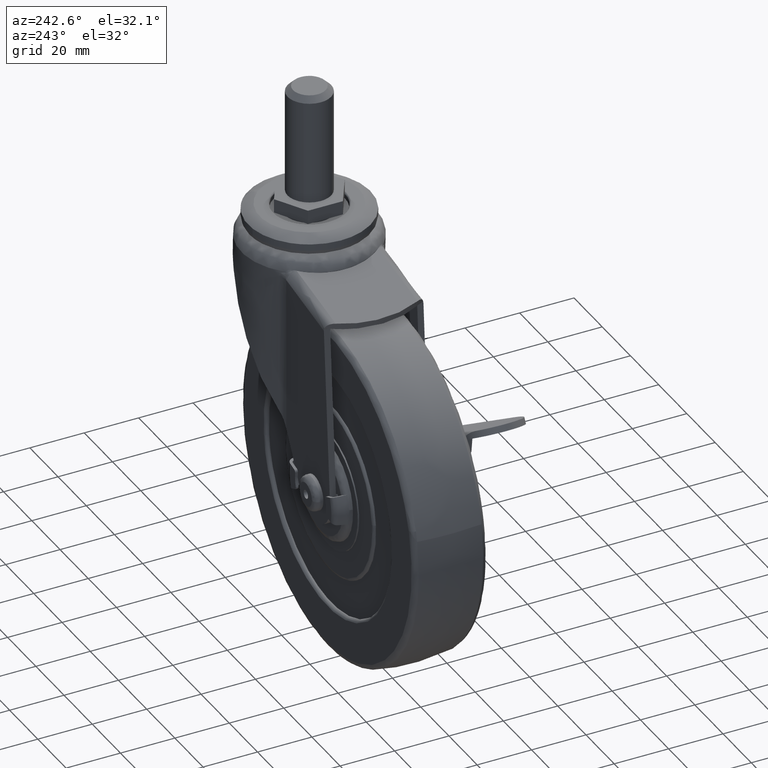
[diagram: clean part render]
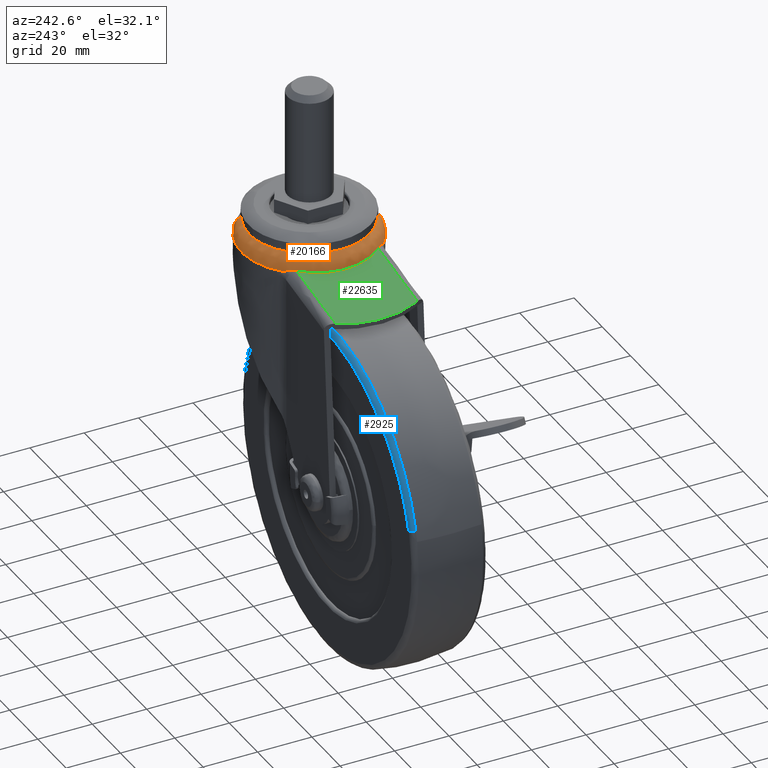
[diagram: same view with three faces highlighted in distinct colors, each labeled with its STEP entity id]
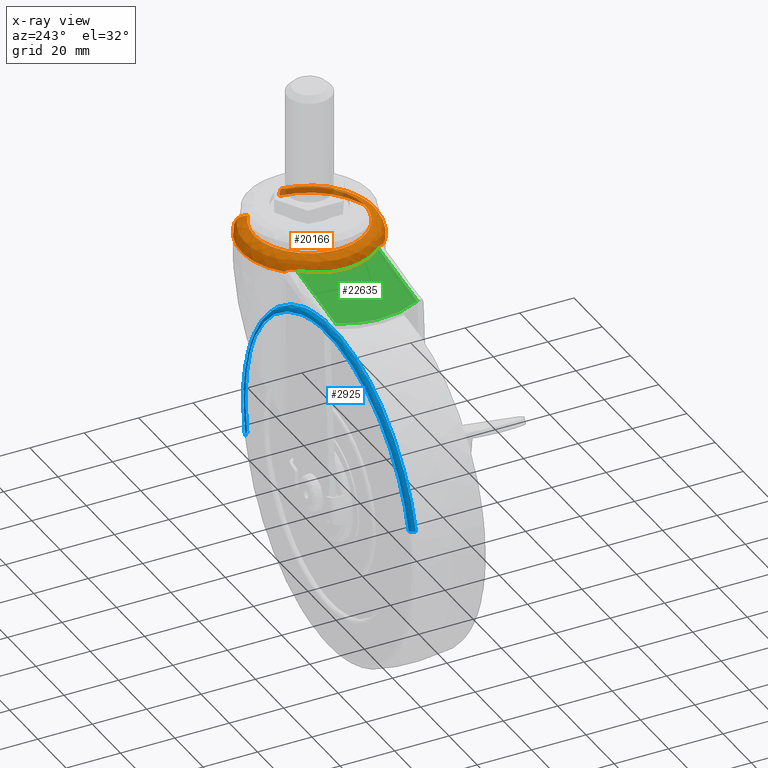
[diagram: x-ray of the same camera — body ghosted, the three highlighted faces saturated]
A machine part, auxiliary view with three faces highlighted in distinct colors.
The next image is the same camera in x-ray (body ghosted, the three faces saturated) — at least one of them is partly hidden behind the body in this view.
Their STEP definitions:

[orange] entity #20166 — the highlighted face is a freeform B-spline surface patch.
#19338=CARTESIAN_POINT('',(39.0,20.265256309137541,77.592953951089541));
#19339=VERTEX_POINT('',#19338);
#19354=CARTESIAN_POINT('',(30.647028415773040,-18.463707076183891,77.592953951375875));
#19355=VERTEX_POINT('',#19354);
#19356=CARTESIAN_POINT('',(39.0,20.265256309137541,77.592953951089541));
#19357=CARTESIAN_POINT('',(37.207735362519543,20.265939163630499,77.592953951109621));
#19358=CARTESIAN_POINT('',(34.555717465452908,19.910899209113051,77.592953951141311));
#19359=CARTESIAN_POINT('',(30.680754423732932,18.588154629503951,77.592953951191461));
#19360=CARTESIAN_POINT('',(27.895194778239350,17.070888497883161,77.592953951230541));
#19361=CARTESIAN_POINT('',(25.302418128438308,15.022444437646870,77.592953951269479));
#19362=CARTESIAN_POINT('',(23.063749737711611,12.687366312922540,77.592953951305589));
#19363=CARTESIAN_POINT('',(21.222096826273319,9.931755367341840,77.592953951342864));
#19364=CARTESIAN_POINT('',(19.671316385626952,6.453288555340813,77.592953951376444));
#19365=CARTESIAN_POINT('',(18.800559652045120,2.879127913058889,77.592953951400943));
#19366=CARTESIAN_POINT('',(18.639399350339900,-1.436671111445533,77.592953951427674));
#19367=CARTESIAN_POINT('',(19.321603073273771,-5.420535010354760,77.592953951439299));
#19368=CARTESIAN_POINT('',(20.698266315513649,-8.901138540536463,77.592953951440208));
#19369=CARTESIAN_POINT('',(22.385647718577221,-11.743489604109969,77.592953951435717));
#19370=CARTESIAN_POINT('',(24.536984550715701,-14.352355683696221,77.592953951424022));
#19371=CARTESIAN_POINT('',(27.344318805089621,-16.720440288034830,77.592953951404567));
#19372=CARTESIAN_POINT('',(29.536659331821600,-17.961505337927711,77.592953951385795));
#19373=CARTESIAN_POINT('',(30.647028415773040,-18.463707076183891,77.592953951375875));
#19374=B_SPLINE_CURVE_WITH_KNOTS('',3,(#19356,#19357,#19358,#19359,#19360,#19361,#19362,#19363,#19364,#19365,#19366,#19367,#19368,#19369,#19370,#19371,#19372,#19373),.UNSPECIFIED.,.F.,.U.,(4,1,1,1,1,1,1,1,1,1,1,1,1,1,1,4),(0.000000175568722,5.376530816068886,7.957279247970575,12.258503648912370,14.839271635573320,17.850128881663672,21.936310371105488,24.732176814358191,29.248321720521890,32.904411038884220,37.635769665605423,41.291847597522597,44.087654074183163,47.528690246728097,51.399823593678867,55.055794238812069),.UNSPECIFIED.);
#19375=EDGE_CURVE('',#19339,#19355,#19374,.T.);
#19457=CARTESIAN_POINT('',(39.0,-20.265256309324450,77.592953951399991));
#19458=VERTEX_POINT('',#19457);
#19459=CARTESIAN_POINT('',(30.647028415773040,-18.463707076183891,77.592953951375875));
#19460=CARTESIAN_POINT('',(32.117700568471207,-19.129472193331040,77.592953951384814));
#19461=CARTESIAN_POINT('',(34.874574977113546,-19.997688185461008,77.592953951396453));
#19462=CARTESIAN_POINT('',(37.744419646314988,-20.265385768020970,77.592953951400162));
#19463=CARTESIAN_POINT('',(39.0,-20.265256309324450,77.592953951399991));
#19464=B_SPLINE_CURVE_WITH_KNOTS('',3,(#19459,#19460,#19461,#19462,#19463),.UNSPECIFIED.,.F.,.U.,(4,1,4),(9.564785E-009,4.842927149938667,8.609660252268593),.UNSPECIFIED.);
#19465=EDGE_CURVE('',#19355,#19458,#19464,.T.);
#19467=CARTESIAN_POINT('',(59.207680703124410,-1.526517022578861,77.592953950958162));
#19468=VERTEX_POINT('',#19467);
#19469=CARTESIAN_POINT('',(39.0,-20.265256309324450,77.592953951399991));
#19470=CARTESIAN_POINT('',(40.578401177677108,-20.265635707481689,77.592953951400048));
#19471=CARTESIAN_POINT('',(42.866843773846320,-19.996454311772940,77.592953951393426));
#19472=CARTESIAN_POINT('',(46.050976621600888,-19.059280732838751,77.592953951371911));
#19473=CARTESIAN_POINT('',(48.296504984463112,-18.070636254484260,77.592953951347511));
#19474=CARTESIAN_POINT('',(50.596565679466153,-16.681632830279121,77.592953951315721));
#19475=CARTESIAN_POINT('',(53.147458999932823,-14.678093188964141,77.592953951268072));
#19476=CARTESIAN_POINT('',(55.708678883279227,-11.745718034808471,77.592953951199604));
#19477=CARTESIAN_POINT('',(57.692284890025682,-8.130019301707547,77.592953951112960));
#19478=CARTESIAN_POINT('',(58.796336034055400,-4.740304569402237,77.592953951035540));
#19479=CARTESIAN_POINT('',(59.130437211760672,-2.549535108950208,77.592953950981155));
#19480=CARTESIAN_POINT('',(59.207680703124410,-1.526517022578861,77.592953950958162));
#19481=B_SPLINE_CURVE_WITH_KNOTS('',3,(#19469,#19470,#19471,#19472,#19473,#19474,#19475,#19476,#19477,#19478,#19479,#19480),.UNSPECIFIED.,.F.,.U.,(4,1,1,1,1,1,1,1,1,4),(0.000000057144167,4.735098445447740,6.865924263569152,9.943786403702600,12.074593821889660,14.915657352290250,19.650737852365570,23.675628872967049,27.226986073415880,30.304798180058661),.UNSPECIFIED.);
#19482=EDGE_CURVE('',#19458,#19468,#19481,.T.);
#19484=CARTESIAN_POINT('',(50.937016643767933,16.376454046136391,77.592953951142775));
#19485=VERTEX_POINT('',#19484);
#19498=CARTESIAN_POINT('',(50.937016643767933,16.376454046136391,77.592953951142775));
#19499=CARTESIAN_POINT('',(50.184890709139843,16.924701531309509,77.592953951179140));
#19500=CARTESIAN_POINT('',(48.322866064470539,18.094739231645551,77.592953951244283));
#19501=CARTESIAN_POINT('',(45.492128053112573,19.286840523628779,77.592953951267020));
#19502=CARTESIAN_POINT('',(42.257560819282808,20.082137474032340,77.592953951218959));
#19503=CARTESIAN_POINT('',(40.196675569357062,20.265374330866649,77.592953951145404));
#19504=CARTESIAN_POINT('',(39.0,20.265256309137541,77.592953951089541));
#19505=B_SPLINE_CURVE_WITH_KNOTS('',3,(#19498,#19499,#19500,#19501,#19502,#19503,#19504),.UNSPECIFIED.,.F.,.U.,(4,1,1,1,4),(0.000000023410548,2.792233055296482,6.581674360535325,9.174482418074692,12.764498748967180),.UNSPECIFIED.);
#19506=EDGE_CURVE('',#19485,#19339,#19505,.T.);
#19976=CARTESIAN_POINT('',(53.719168710118616,20.193309938605488,72.260650173845860));
#19977=CARTESIAN_POINT('',(47.972897041528846,24.381842794353272,72.260650173845875));
#19978=CARTESIAN_POINT('',(40.882301711849550,24.917476478549883,72.260650173845889));
#19979=CARTESIAN_POINT('',(15.964825233299669,26.799778190399419,72.260650173845889));
#19980=CARTESIAN_POINT('',(14.082523521450126,1.882301711849547,72.260650173845889));
#19981=CARTESIAN_POINT('',(12.200221809600583,-23.035174766700337,72.260650173845889));
#19982=CARTESIAN_POINT('',(37.117698288150450,-24.917476478549883,72.260650173845889));
#19983=CARTESIAN_POINT('',(62.035174766700329,-26.799778190399419,72.260650173845889));
#19984=CARTESIAN_POINT('',(63.917476478549872,-1.882301711849545,72.260650173845889));
#19985=CARTESIAN_POINT('',(53.936264964327144,20.491145504871501,77.678599923360807));
#19986=CARTESIAN_POINT('',(48.105240272011400,24.741455952242866,77.678599923360807));
#19987=CARTESIAN_POINT('',(40.910064193480174,25.284989815366483,77.678599923360792));
#19988=CARTESIAN_POINT('',(15.625074378113686,27.195054008846665,77.678599923360792));
#19989=CARTESIAN_POINT('',(13.715010184633512,1.910064193480179,77.678599923360792));
#19990=CARTESIAN_POINT('',(11.804945991153332,-23.374925621886305,77.678599923360792));
#19991=CARTESIAN_POINT('',(37.089935806519826,-25.284989815366483,77.678599923360792));
#19992=CARTESIAN_POINT('',(62.374925621886305,-27.195054008846665,77.678599923360792));
#19993=CARTESIAN_POINT('',(64.284989815366472,-1.910064193480176,77.678599923360792));
#19994=CARTESIAN_POINT('',(50.737848706926975,16.103220339372406,77.599464073260506));
#19995=CARTESIAN_POINT('',(46.155465774632702,19.443379415812810,77.599464073260535));
#19996=CARTESIAN_POINT('',(40.501047589684269,19.870522230142509,77.599464073260521));
#19997=CARTESIAN_POINT('',(20.630525359541764,21.371569819826764,77.599464073260521));
#19998=CARTESIAN_POINT('',(19.129477769857491,1.501047589684267,77.599464073260521));
#19999=CARTESIAN_POINT('',(17.628430180173233,-18.369474640458236,77.599464073260521));
#20000=CARTESIAN_POINT('',(37.498952410315738,-19.870522230142509,77.599464073260521));
#20001=CARTESIAN_POINT('',(57.369474640458243,-21.371569819826764,77.599464073260521));
#20002=CARTESIAN_POINT('',(58.870522230142512,-1.501047589684265,77.599464073260521));
#20010=(BOUNDED_SURFACE()B_SPLINE_SURFACE(2,2,((#19976,#19985,#19994),(#19977,#19986,#19995),(#19978,#19987,#19996),(#19979,#19988,#19997),(#19980,#19989,#19998),(#19981,#19990,#19999),(#19982,#19991,#20000),(#19983,#19992,#20001),(#19984,#19993,#20002)),.UNSPECIFIED.,.F.,.F.,.U.)B_SPLINE_SURFACE_WITH_KNOTS((3,2,2,2,3),(3,3),(0.0,14.904807357810411,56.307062083032022,97.709316808253632,139.111571533475310),(0.0,8.771733448639784),.UNSPECIFIED.)GEOMETRIC_REPRESENTATION_ITEM()RATIONAL_B_SPLINE_SURFACE(((0.788496265358949,0.535197888740903,0.791782815058649),(0.815407653379609,0.553464199799698,0.818806373064258),(0.911519681435157,0.618700976126748,0.915319007908730),(0.644541747927801,0.437487655745960,0.647228277441206),(0.911519681435157,0.618700976126748,0.915319007908730),(0.644541747927801,0.437487655745960,0.647228277441206),(0.911519681435157,0.618700976126748,0.915319007908730),(0.644541747927801,0.437487655745960,0.647228277441206),(0.911519681435157,0.618700976126748,0.915319007908730)))REPRESENTATION_ITEM('')SURFACE());
#20011=ORIENTED_EDGE('',*,*,#19506,.F.);
#20012=CARTESIAN_POINT('',(53.725963070296622,20.202623880383950,72.599995001327400));
#20013=VERTEX_POINT('',#20012);
#20014=CARTESIAN_POINT('',(53.725963070296622,20.202623880383950,72.599995001327400));
#20015=CARTESIAN_POINT('',(53.726044020887429,20.202734936912410,73.034766933663732));
#20016=CARTESIAN_POINT('',(53.667884139079902,20.122945098276599,73.785649172845680));
#20017=CARTESIAN_POINT('',(53.447980828383187,19.821258624188719,74.790516428405027));
#20018=CARTESIAN_POINT('',(53.132550165690859,19.388517688432120,75.673014550826409));
#20019=CARTESIAN_POINT('',(52.745387567597213,18.857367344458790,76.366151845357578));
#20020=CARTESIAN_POINT('',(52.233299335353053,18.154830885511789,76.989759544364617));
#20021=CARTESIAN_POINT('',(51.654624053491979,17.360943313409290,77.429218116250965));
#20022=CARTESIAN_POINT('',(51.169497511860257,16.695395735397081,77.572066697549573));
#20023=CARTESIAN_POINT('',(50.937016643767933,16.376454046136391,77.592953951142775));
#20024=B_SPLINE_CURVE_WITH_KNOTS('',3,(#20014,#20015,#20016,#20017,#20018,#20019,#20020,#20021,#20022,#20023),.UNSPECIFIED.,.F.,.U.,(4,1,1,1,1,1,1,4),(0.000000116956426,1.304302515479774,2.252929909464606,3.201553515158485,4.387222962493793,5.098688351876321,6.403060440903855,7.588778514287679),.UNSPECIFIED.);
#20025=EDGE_CURVE('',#20013,#19485,#20024,.T.);
#20026=ORIENTED_EDGE('',*,*,#20025,.F.);
#20027=CARTESIAN_POINT('',(21.741450358403650,18.087080037102648,72.599995000000092));
#20028=VERTEX_POINT('',#20027);
#20029=CARTESIAN_POINT('',(21.741450358403650,18.087080037102648,72.599995000000092));
#20030=CARTESIAN_POINT('',(22.855844499984521,19.150594721530940,72.599994999999936));
#20031=CARTESIAN_POINT('',(25.496033125488172,21.240253576220329,72.599995000020456));
#20032=CARTESIAN_POINT('',(30.050680252922330,23.544728638531939,72.599995000115186));
#20033=CARTESIAN_POINT('',(34.897448533926543,24.814924941186611,72.599995000272770));
#20034=CARTESIAN_POINT('',(38.800086647374272,25.072836461592779,72.599995000433893));
#20035=CARTESIAN_POINT('',(42.511075493523776,24.833449477426189,72.599995000611628));
#20036=CARTESIAN_POINT('',(45.899946686139792,24.145223667772811,72.599995000793072));
#20037=CARTESIAN_POINT('',(49.975443012818829,22.594977382841300,72.599995001049137));
#20038=CARTESIAN_POINT('',(52.408021075714501,21.163548158963319,72.599995001223419));
#20039=CARTESIAN_POINT('',(53.725963070296622,20.202623880383950,72.599995001327400));
#20040=B_SPLINE_CURVE_WITH_KNOTS('',3,(#20029,#20030,#20031,#20032,#20033,#20034,#20035,#20036,#20037,#20038,#20039),.UNSPECIFIED.,.F.,.U.,(4,1,1,1,1,1,1,1,4),(0.000000028802951,4.621323246907572,10.058201694884881,15.223255648960210,19.572665828358680,21.747420313859589,26.368789793519191,29.902773110238272,34.795925694113890),.UNSPECIFIED.);
#20041=EDGE_CURVE('',#20028,#20013,#20040,.T.);
#20042=ORIENTED_EDGE('',*,*,#20041,.F.);
#20043=CARTESIAN_POINT('',(19.095258701191302,14.941295110454300,73.649691110702889));
#20044=VERTEX_POINT('',#20043);
#20045=CARTESIAN_POINT('',(21.741450358403650,18.087080037102648,72.599995000000092));
#20046=CARTESIAN_POINT('',(21.699621282750840,18.046139488200719,72.659139333970501));
#20047=CARTESIAN_POINT('',(21.616308726464052,17.964596644339899,72.776939346902125));
#20048=CARTESIAN_POINT('',(21.486822298822830,17.826022126096760,72.937044719284899));
#20049=CARTESIAN_POINT('',(21.354042465109121,17.677589553745658,73.083418567606103));
#20050=CARTESIAN_POINT('',(21.217008676747231,17.518835170046149,73.214970927605449));
#20051=CARTESIAN_POINT('',(21.075249422431860,17.350789511375400,73.332014465480896));
#20052=CARTESIAN_POINT('',(20.928254756217029,17.173936114308589,73.434527147665321));
#20053=CARTESIAN_POINT('',(20.775648112368660,16.988758881934238,73.522687035512675));
#20054=CARTESIAN_POINT('',(20.617029951703120,16.795590764239051,73.596373006823228));
#20055=CARTESIAN_POINT('',(20.402027934075139,16.533119047089489,73.675029417752953));
#20056=CARTESIAN_POINT('',(20.116092033746380,16.186862390078971,73.732976802962696));
#20057=CARTESIAN_POINT('',(19.787914059333279,15.792122293183599,73.741451434750786));
#20058=CARTESIAN_POINT('',(19.440961636958399,15.374731823102090,73.706538179823738));
#20059=CARTESIAN_POINT('',(19.221703592066412,15.099829656047280,73.670483590915993));
#20060=CARTESIAN_POINT('',(19.095258701191380,14.941295110454320,73.649691110702832));
#20061=B_SPLINE_CURVE_WITH_KNOTS('',3,(#20045,#20046,#20047,#20048,#20049,#20050,#20051,#20052,#20053,#20054,#20055,#20056,#20057,#20058,#20059,#20060),.UNSPECIFIED.,.F.,.U.,(4,1,1,1,1,1,1,1,1,1,1,1,1,4),(0.0,0.056445707741209,0.112425056732446,0.168208356801503,0.224068719196261,0.280278508212700,0.337105845181789,0.394811395751040,0.453645627378580,0.513846655690653,0.631039270591471,0.760121751284982,0.861663552655484,1.0),.UNSPECIFIED.);
#20062=EDGE_CURVE('',#20028,#20044,#20061,.T.);
#20063=ORIENTED_EDGE('',*,*,#20062,.T.);
#20064=CARTESIAN_POINT('',(19.095266546044702,-14.941305074135640,73.649692472816696));
#20065=VERTEX_POINT('',#20064);
#20066=CARTESIAN_POINT('',(19.095258701191380,14.941295110454320,73.649691110702847));
#20067=CARTESIAN_POINT('',(18.957376278903631,14.763049209350870,73.625752663711751));
#20068=CARTESIAN_POINT('',(18.681746168338520,14.406731582972130,73.577899161565284));
#20069=CARTESIAN_POINT('',(18.288525458876499,13.857053189672120,73.509650343443184));
#20070=CARTESIAN_POINT('',(17.910657063345020,13.297320619043459,73.444079813060583));
#20071=CARTESIAN_POINT('',(17.549762917166088,12.726980806134280,73.381468293079536));
#20072=CARTESIAN_POINT('',(17.205649137839242,12.146931891635941,73.321778840336790));
#20073=CARTESIAN_POINT('',(16.878582878947480,11.557676724805081,73.265054724629252));
#20074=CARTESIAN_POINT('',(16.568684452953271,10.959816316336260,73.211313410938217));
#20075=CARTESIAN_POINT('',(16.276091169307051,10.353917401742381,73.160575328030902));
#20076=CARTESIAN_POINT('',(16.000914699741280,9.740547538715717,73.112856560647359));
#20077=CARTESIAN_POINT('',(15.743253639937819,9.120265484429096,73.068171172119492));
#20078=CARTESIAN_POINT('',(15.503191266773340,8.493623624476847,73.026530930453148));
#20079=CARTESIAN_POINT('',(15.280797211244790,7.861167261852696,72.987945708040854));
#20080=CARTESIAN_POINT('',(15.076128036010010,7.223434823561256,72.952423679961711));
#20081=CARTESIAN_POINT('',(14.889228054510269,6.580957893886220,72.919971554637200));
#20082=CARTESIAN_POINT('',(14.720130031165430,5.934261359977308,72.890594774092861));
#20083=CARTESIAN_POINT('',(14.568855856446049,5.283863589242321,72.864297700401252));
#20084=CARTESIAN_POINT('',(14.435417169842980,4.630276648775743,72.841083783805388));
#20085=CARTESIAN_POINT('',(14.319815935028220,3.974006580011388,72.820955713303320));
#20086=CARTESIAN_POINT('',(14.222044968536180,3.315553640030224,72.803915550539742));
#20087=CARTESIAN_POINT('',(14.142088405397489,2.655412824797312,72.789964842436433));
#20088=CARTESIAN_POINT('',(14.079922160889440,1.994073478965908,72.779104729659977));
#20089=CARTESIAN_POINT('',(14.035514164203921,1.332022426982557,72.771335986969476));
#20090=CARTESIAN_POINT('',(14.008825196981160,0.669734084432085,72.766659233636801));
#20091=CARTESIAN_POINT('',(13.996789961664479,-0.213794014715182,72.764544174717145));
#20092=CARTESIAN_POINT('',(14.025958035596791,-1.319528596174139,72.769661418485171));
#20093=CARTESIAN_POINT('',(14.131950366112100,-2.644636940216876,72.788191893830685));
#20094=CARTESIAN_POINT('',(14.309242017588719,-3.965009480352729,72.819109916770202));
#20095=CARTESIAN_POINT('',(14.557997130965729,-5.276669834057826,72.862405054986979));
#20096=CARTESIAN_POINT('',(14.878236844185491,-6.575589298657968,72.918057912481004));
#20097=CARTESIAN_POINT('',(15.269836591321100,-7.857625667023785,72.986038597454566));
#20098=CARTESIAN_POINT('',(15.732460367291660,-9.118564061669238,73.066293453852467));
#20099=CARTESIAN_POINT('',(16.265711536244929,-10.353968693726561,73.158769061841909));
#20100=CARTESIAN_POINT('',(16.868459766468849,-11.559707407658250,73.263291699631154));
#20101=CARTESIAN_POINT('',(17.541240385277419,-12.729985908054379,73.379982828100111));
#20102=CARTESIAN_POINT('',(18.277136883358232,-13.864723276980600,73.507662211116994));
#20103=CARTESIAN_POINT('',(18.822370679632058,-14.582199744383820,73.602316765650556));
#20104=CARTESIAN_POINT('',(19.095266546044702,-14.941305074135640,73.649692472816696));
#20105=B_SPLINE_CURVE_WITH_KNOTS('',3,(#20066,#20067,#20068,#20069,#20070,#20071,#20072,#20073,#20074,#20075,#20076,#20077,#20078,#20079,#20080,#20081,#20082,#20083,#20084,#20085,#20086,#20087,#20088,#20089,#20090,#20091,#20092,#20093,#20094,#20095,#20096,#20097,#20098,#20099,#20100,#20101,#20102,#20103,#20104),.UNSPECIFIED.,.F.,.U.,(4,1,1,1,1,1,1,1,1,1,1,1,1,1,1,1,1,1,1,1,1,1,1,1,1,1,1,1,1,1,1,1,1,1,1,1,4),(0.0,0.021097947555883,0.042175278915459,0.063231105305951,0.084264643602139,0.105275212087599,0.126262226099957,0.147225193575720,0.168163710508992,0.189077456337121,0.209966189265169,0.230829741539992,0.251668014683651,0.272480974694919,0.293268647226731,0.314031112746562,0.334768501685974,0.355480989584819,0.376168792234987,0.396832160827967,0.417471377110033,0.438086748548363,0.458678603511086,0.479247286463887,0.499793153185592,0.540939663101128,0.582179309945174,0.623514777113907,0.664948413530105,0.706482078474809,0.748116985726154,0.789853547470926,0.831691218585441,0.873628342048072,0.915661996446246,0.957787846775839,1.0),.UNSPECIFIED.);
#20106=EDGE_CURVE('',#20044,#20065,#20105,.T.);
#20107=ORIENTED_EDGE('',*,*,#20106,.T.);
#20108=CARTESIAN_POINT('',(21.741461495066449,-18.087090663612251,72.599995000000092));
#20109=VERTEX_POINT('',#20108);
#20110=CARTESIAN_POINT('',(19.095266546044758,-14.941305074135620,73.649692472816668));
#20111=CARTESIAN_POINT('',(19.221362905296850,-15.099398871141309,73.670458263198356));
#20112=CARTESIAN_POINT('',(19.439579876455689,-15.372989240809391,73.706394652699885));
#20113=CARTESIAN_POINT('',(19.785496055227629,-15.789074084946300,73.741703320365346));
#20114=CARTESIAN_POINT('',(20.113037547064341,-16.182916682413811,73.734026906424745));
#20115=CARTESIAN_POINT('',(20.443008794305001,-16.582582271291539,73.667480793591778));
#20116=CARTESIAN_POINT('',(20.740546528644831,-16.946105997258620,73.547436082191268));
#20117=CARTESIAN_POINT('',(21.015192923893000,-17.279469205336540,73.383938533549440));
#20118=CARTESIAN_POINT('',(21.271934879255660,-17.584182161973409,73.171448612737123));
#20119=CARTESIAN_POINT('',(21.514757204781962,-17.860791399957279,72.913581356411115));
#20120=CARTESIAN_POINT('',(21.665678928338671,-18.011443488929881,72.704820448825089));
#20121=CARTESIAN_POINT('',(21.741461495066421,-18.087090663612130,72.599995000000035));
#20122=B_SPLINE_CURVE_WITH_KNOTS('',3,(#20110,#20111,#20112,#20113,#20114,#20115,#20116,#20117,#20118,#20119,#20120,#20121),.UNSPECIFIED.,.F.,.U.,(4,1,1,1,1,1,1,1,1,4),(0.0,0.137975064425146,0.238773750748080,0.367916882681354,0.485062150775261,0.592588865905380,0.696324681755445,0.797753151011051,0.898445465849561,1.0),.UNSPECIFIED.);
#20123=EDGE_CURVE('',#20065,#20109,#20122,.T.);
#20124=ORIENTED_EDGE('',*,*,#20123,.T.);
#20125=CARTESIAN_POINT('',(63.928972506515372,-1.883170138198052,72.599995001313403));
#20126=VERTEX_POINT('',#20125);
#20127=CARTESIAN_POINT('',(63.928972506515372,-1.883170138198052,72.599995001313403));
#20128=CARTESIAN_POINT('',(63.834943624609359,-3.128804924485975,72.599995001246739));
#20129=CARTESIAN_POINT('',(63.470618366731898,-5.533053264339842,72.599995001115900));
#20130=CARTESIAN_POINT('',(62.547129108859110,-8.563019958400812,72.599995000946038));
#20131=CARTESIAN_POINT('',(61.285021384269037,-11.463100182291940,72.599995000779657));
#20132=CARTESIAN_POINT('',(59.572934579100291,-14.388639858906830,72.599995000606015));
#20133=CARTESIAN_POINT('',(57.184150777186673,-17.293273201651580,72.599995000427541));
#20134=CARTESIAN_POINT('',(54.337346549273498,-19.854580020095490,72.599995000261671));
#20135=CARTESIAN_POINT('',(51.575797291436338,-21.692262547312360,72.599995000134271));
#20136=CARTESIAN_POINT('',(48.667297227018089,-23.114760216020990,72.599995000027747));
#20137=CARTESIAN_POINT('',(46.030102279982593,-24.048412010269750,72.599994999950766));
#20138=CARTESIAN_POINT('',(42.731042673663183,-24.805795244296519,72.599994999871598));
#20139=CARTESIAN_POINT('',(39.496875054046392,-25.079911708346060,72.599994999830500));
#20140=CARTESIAN_POINT('',(36.043877345513337,-24.884371597655239,72.599994999787626));
#20141=CARTESIAN_POINT('',(32.925908237638467,-24.331295126928069,72.599994999798383));
#20142=CARTESIAN_POINT('',(29.981599325179442,-23.380781479655312,72.599994999808885));
#20143=CARTESIAN_POINT('',(27.107837957055409,-22.058339021903262,72.599994999847524));
#20144=CARTESIAN_POINT('',(24.407967769219290,-20.401770944489829,72.599994999911004));
#20145=CARTESIAN_POINT('',(22.592033341650950,-18.898765944837649,72.599994999964750));
#20146=CARTESIAN_POINT('',(21.741461495066449,-18.087090663612251,72.599995000000092));
#20147=B_SPLINE_CURVE_WITH_KNOTS('',3,(#20127,#20128,#20129,#20130,#20131,#20132,#20133,#20134,#20135,#20136,#20137,#20138,#20139,#20140,#20141,#20142,#20143,#20144,#20145,#20146),.UNSPECIFIED.,.F.,.U.,(4,1,1,1,1,1,1,1,1,1,1,1,1,1,1,1,1,4),(0.000000200316883,3.747538317069477,7.274660653944558,9.479162851741393,13.226757089638150,17.415259945648490,20.721923247309370,24.689972120032579,27.335377648771878,30.421518926073482,33.066816638779763,37.475794114669178,40.121156776199022,43.427861131929717,46.955008205694462,49.379945773638831,52.907031903430934,56.434160998662350),.UNSPECIFIED.);
#20148=EDGE_CURVE('',#20126,#20109,#20147,.T.);
#20149=ORIENTED_EDGE('',*,*,#20148,.F.);
#20150=CARTESIAN_POINT('',(63.928972506515372,-1.883170138198052,72.599995001313403));
#20151=CARTESIAN_POINT('',(63.929693029620680,-1.883224567540962,73.272003593129398));
#20152=CARTESIAN_POINT('',(63.695034199778640,-1.865498104899890,74.417639821572237));
#20153=CARTESIAN_POINT('',(62.930596171437863,-1.807751366113331,75.680401356015835));
#20154=CARTESIAN_POINT('',(62.093101077357922,-1.744485792397952,76.524946475989680));
#20155=CARTESIAN_POINT('',(60.927270966936383,-1.656417323326368,77.282504745123831));
#20156=CARTESIAN_POINT('',(59.876930278889603,-1.577073089914566,77.558119742330675));
#20157=CARTESIAN_POINT('',(59.207680703124410,-1.526517022578861,77.592953950958162));
#20158=B_SPLINE_CURVE_WITH_KNOTS('',3,(#20150,#20151,#20152,#20153,#20154,#20155,#20156,#20157),.UNSPECIFIED.,.F.,.U.,(4,1,1,1,1,4),(0.000000116937168,2.015771391364621,3.438692823608865,4.387222960048918,5.573008253519255,7.588778510073568),.UNSPECIFIED.);
#20159=EDGE_CURVE('',#20126,#19468,#20158,.T.);
#20160=ORIENTED_EDGE('',*,*,#20159,.T.);
#20161=ORIENTED_EDGE('',*,*,#19482,.F.);
#20162=ORIENTED_EDGE('',*,*,#19465,.F.);
#20163=ORIENTED_EDGE('',*,*,#19375,.F.);
#20164=EDGE_LOOP('',(#20011,#20026,#20042,#20063,#20107,#20124,#20149,#20160,#20161,#20162,#20163));
#20165=FACE_OUTER_BOUND('',#20164,.T.);
#20166=ADVANCED_FACE('',(#20165),#20010,.T.);

[blue] entity #2925 — the highlighted face is a freeform B-spline surface patch.
#2794=CARTESIAN_POINT('',(58.975554669911766,13.495963781328346,-7.033801539133821));
#2795=CARTESIAN_POINT('',(65.617949348972161,13.495963781328342,48.659966383453650));
#2796=CARTESIAN_POINT('',(10.395235840621163,13.495963781328346,58.476743108124090));
#2797=CARTESIAN_POINT('',(-48.081507267502928,13.495963781328346,68.871978948745266));
#2798=CARTESIAN_POINT('',(-58.476743108124090,13.495963781328346,10.395235840621167));
#2799=CARTESIAN_POINT('',(60.874662972626886,13.617655838825218,-7.260301331757802));
#2800=CARTESIAN_POINT('',(67.730953509988538,13.617655838825218,50.226896049242818));
#2801=CARTESIAN_POINT('',(10.729979257687779,13.617655838825220,60.359788871304247));
#2802=CARTESIAN_POINT('',(-49.629809613616466,13.617655838825220,71.089768128992034));
#2803=CARTESIAN_POINT('',(-60.359788871304247,13.617655838825220,10.729979257687784));
#2804=CARTESIAN_POINT('',(61.076394281916663,11.712019707526249,-7.284361096887877));
#2805=CARTESIAN_POINT('',(67.955405741242089,11.712019707526245,50.393341939976210));
#2806=CARTESIAN_POINT('',(10.765537118029096,11.712019707526240,60.559813949766500));
#2807=CARTESIAN_POINT('',(-49.794276831737399,11.712019707526242,71.325351067795594));
#2808=CARTESIAN_POINT('',(-60.559813949766500,11.712019707526240,10.765537118029100));
#2816=(BOUNDED_SURFACE()B_SPLINE_SURFACE(2,2,((#2794,#2799,#2804),(#2795,#2800,#2805),(#2796,#2801,#2806),(#2797,#2802,#2807),(#2798,#2803,#2808)),.UNSPECIFIED.,.F.,.F.,.U.)B_SPLINE_SURFACE_WITH_KNOTS((3,2,3),(3,3),(0.0,97.835388007989707,199.747250516312310),(0.0,3.214166839079067),.UNSPECIFIED.)GEOMETRIC_REPRESENTATION_ITEM()RATIONAL_B_SPLINE_SURFACE(((0.897531683444913,0.647213626943792,0.895230914857211),(0.660012428487823,0.475937558025829,0.658320526250868),(0.918185531702052,0.662107198154050,0.915831818214285),(0.649255215853897,0.468180489687154,0.647590889085726),(0.918185531702052,0.662107198154050,0.915831818214285)))REPRESENTATION_ITEM('')SURFACE());
#2817=CARTESIAN_POINT('',(61.058980854184981,11.838214140215969,-7.282284260259971));
#2818=VERTEX_POINT('',#2817);
#2819=CARTESIAN_POINT('',(0.0,11.838186530351940,61.491719732817891));
#2820=VERTEX_POINT('',#2819);
#2821=CARTESIAN_POINT('',(61.058980854184981,11.838214140215969,-7.282284260259971));
#2822=CARTESIAN_POINT('',(61.347412342535208,11.838213175602480,-4.864507974787476));
#2823=CARTESIAN_POINT('',(61.620398465297647,11.838211339942880,-0.265188210464312));
#2824=CARTESIAN_POINT('',(61.255229142504241,11.838208584559570,6.633736581850348));
#2825=CARTESIAN_POINT('',(60.011493531499447,11.838205538308360,14.255733116276231));
#2826=CARTESIAN_POINT('',(57.707604191586498,11.838202527856451,21.781499444693129));
#2827=CARTESIAN_POINT('',(54.641770524114321,11.838199867976041,28.424497703118270));
#2828=CARTESIAN_POINT('',(51.623044665364240,11.838197809854830,33.560610658568422));
#2829=CARTESIAN_POINT('',(48.080102378310123,11.838195821549320,38.518613959462762));
#2830=CARTESIAN_POINT('',(42.952081793568652,11.838193502547970,44.295067846239277));
#2831=CARTESIAN_POINT('',(36.738110315466344,11.838191385398019,49.559232294823687));
#2832=CARTESIAN_POINT('',(29.182148235820190,11.838189457304381,54.341572632968941));
#2833=CARTESIAN_POINT('',(22.518373142461382,11.838188223937831,57.389410167582177));
#2834=CARTESIAN_POINT('',(15.161154302428169,11.838187274913659,59.720784559786317));
#2835=CARTESIAN_POINT('',(8.116389695696665,11.838186693220990,61.134066875162688));
#2836=CARTESIAN_POINT('',(2.705462407232775,11.838186537005811,61.491813082966090));
#2837=CARTESIAN_POINT('',(0.0,11.838186530351940,61.491719732817891));
#2838=B_SPLINE_CURVE_WITH_KNOTS('',3,(#2821,#2822,#2823,#2824,#2825,#2826,#2827,#2828,#2829,#2830,#2831,#2832,#2833,#2834,#2835,#2836,#2837),.UNSPECIFIED.,.F.,.U.,(4,1,1,1,1,1,1,1,1,1,1,1,1,1,4),(0.000000042022691,7.304762199967598,13.797926075644259,20.696936273470271,30.436704888044460,37.335700071244048,42.611416298245132,48.292950470415832,55.597619876458147,65.743230222634025,72.642214854859958,82.381981648166899,87.657698968528507,95.774174716012467,103.890566604706510),.UNSPECIFIED.);
#2839=EDGE_CURVE('',#2818,#2820,#2838,.T.);
#2840=ORIENTED_EDGE('',*,*,#2839,.F.);
#2841=CARTESIAN_POINT('',(59.101661305035861,13.499999999999490,-7.048841822405143));
#2842=VERTEX_POINT('',#2841);
#2843=CARTESIAN_POINT('',(59.101661305035861,13.499999999999490,-7.048841822405143));
#2844=CARTESIAN_POINT('',(59.319023532754571,13.500128675633039,-7.074765830756471));
#2845=CARTESIAN_POINT('',(59.724662025816443,13.432245614427231,-7.123144869709246));
#2846=CARTESIAN_POINT('',(60.233455676633902,13.171575252100141,-7.183826851997482));
#2847=CARTESIAN_POINT('',(60.591268589601803,12.846882993308860,-7.226501906632907));
#2848=CARTESIAN_POINT('',(60.895263157420203,12.416843459813849,-7.262758241494016));
#2849=CARTESIAN_POINT('',(61.019948924350082,12.068391310182299,-7.277629062872037));
#2850=CARTESIAN_POINT('',(61.058980854184981,11.838214140215969,-7.282284260259971));
#2851=B_SPLINE_CURVE_WITH_KNOTS('',3,(#2843,#2844,#2845,#2846,#2847,#2848,#2849,#2850),.UNSPECIFIED.,.F.,.U.,(4,1,1,1,1,4),(0.000000318243060,0.656669809809093,1.225827562746378,1.707341160186980,2.101348423522803,2.801797754338399),.UNSPECIFIED.);
#2852=EDGE_CURVE('',#2842,#2818,#2851,.T.);
#2853=ORIENTED_EDGE('',*,*,#2852,.F.);
#2854=CARTESIAN_POINT('',(0.0,13.500000000000000,59.520521999999893));
#2855=VERTEX_POINT('',#2854);
#2856=CARTESIAN_POINT('',(59.101661305035861,13.499999999999490,-7.048841822405143));
#2857=CARTESIAN_POINT('',(59.380841668974767,13.499999999999480,-4.708561244879266));
#2858=CARTESIAN_POINT('',(59.637312712394262,13.499999999999661,-0.387609060644323));
#2859=CARTESIAN_POINT('',(59.318929510570662,13.499999999999631,6.028292142012027));
#2860=CARTESIAN_POINT('',(58.267605247631863,13.499999999999710,12.897690299856180));
#2861=CARTESIAN_POINT('',(56.183366995030667,13.499999999999879,20.221314830808481));
#2862=CARTESIAN_POINT('',(52.737578668157632,13.499999999999829,28.023850517587839));
#2863=CARTESIAN_POINT('',(48.567429222686123,13.500000000000080,34.708636813534518));
#2864=CARTESIAN_POINT('',(43.810561567058002,13.499999999999870,40.474971857932204));
#2865=CARTESIAN_POINT('',(39.192117383197747,13.500000000000060,44.943037410217777));
#2866=CARTESIAN_POINT('',(33.510476585334182,13.500000000000060,49.382531288902790));
#2867=CARTESIAN_POINT('',(26.180259103860301,13.500000000000041,53.755520609024899));
#2868=CARTESIAN_POINT('',(17.855375346232780,13.500000000000171,57.012004090772876));
#2869=CARTESIAN_POINT('',(8.903649803224074,13.499999999999870,59.054817862359542));
#2870=CARTESIAN_POINT('',(3.273432257720105,13.500000000000140,59.520745908575996));
#2871=CARTESIAN_POINT('',(0.0,13.500000000000000,59.520521999999893));
#2872=B_SPLINE_CURVE_WITH_KNOTS('',3,(#2856,#2857,#2858,#2859,#2860,#2861,#2862,#2863,#2864,#2865,#2866,#2867,#2868,#2869,#2870,#2871),.UNSPECIFIED.,.F.,.U.,(4,1,1,1,1,1,1,1,1,1,1,1,1,4),(0.000000050295270,7.070630867088553,12.962813153478780,19.247838661977131,27.889757050995261,35.746054386515681,44.780763037887397,51.458491574564299,58.136353058317788,64.028539393198798,73.063280300453954,83.669277413976090,90.739940462780311,100.560223144414810),.UNSPECIFIED.);
#2873=EDGE_CURVE('',#2842,#2855,#2872,.T.);
#2874=ORIENTED_EDGE('',*,*,#2873,.T.);
#2875=CARTESIAN_POINT('',(-58.601783165821061,13.499999999999471,10.417463838446670));
#2876=VERTEX_POINT('',#2875);
#2877=CARTESIAN_POINT('',(0.0,13.500000000000000,59.520521999999893));
#2878=CARTESIAN_POINT('',(-3.243101229679792,13.499999999999989,59.520720902309257));
#2879=CARTESIAN_POINT('',(-9.404909197749552,13.500000000000011,59.015692100966888));
#2880=CARTESIAN_POINT('',(-17.201946795210251,13.499999999999950,57.132217742504679));
#2881=CARTESIAN_POINT('',(-23.792940899878641,13.499999999999970,54.674618674003028));
#2882=CARTESIAN_POINT('',(-29.128196172743579,13.499999999999790,52.028506526476541));
#2883=CARTESIAN_POINT('',(-34.981812422217153,13.499999999999940,48.326478391373449));
#2884=CARTESIAN_POINT('',(-39.865064535604994,13.499999999999741,44.368761368734987));
#2885=CARTESIAN_POINT('',(-44.800983731199047,13.499999999999829,39.359358005106102));
#2886=CARTESIAN_POINT('',(-48.778958494469762,13.499999999999710,34.356364120456170));
#2887=CARTESIAN_POINT('',(-53.093118213174037,13.499999999999790,27.349956634124780));
#2888=CARTESIAN_POINT('',(-56.512006075227902,13.499999999999099,19.488616601952760));
#2889=CARTESIAN_POINT('',(-58.091019927070683,13.500000000000060,13.291204806559691));
#2890=CARTESIAN_POINT('',(-58.601783165821061,13.499999999999471,10.417463838446670));
#2891=B_SPLINE_CURVE_WITH_KNOTS('',3,(#2877,#2878,#2879,#2880,#2881,#2882,#2883,#2884,#2885,#2886,#2887,#2888,#2889,#2890),.UNSPECIFIED.,.F.,.U.,(4,1,1,1,1,1,1,1,1,1,1,4),(0.000000066763846,9.729281172994703,18.485654621343979,23.998931027851210,30.809470884319690,36.322708018602853,44.754700892330852,49.619364180167722,57.402838705438391,63.889046689014620,74.266959222680242,83.023322899361290),.UNSPECIFIED.);
#2892=EDGE_CURVE('',#2855,#2876,#2891,.T.);
#2893=ORIENTED_EDGE('',*,*,#2892,.T.);
#2894=CARTESIAN_POINT('',(-60.542550045921203,11.838211046166910,10.762468165441740));
#2895=VERTEX_POINT('',#2894);
#2896=CARTESIAN_POINT('',(-58.601783165821061,13.499999999999471,10.417463838446670));
#2897=CARTESIAN_POINT('',(-58.903635564199867,13.500555605320480,10.471123237005539));
#2898=CARTESIAN_POINT('',(-59.334099176198137,13.397316952014840,10.547645466568550));
#2899=CARTESIAN_POINT('',(-59.897515443105490,13.040070964649029,10.647802292183890));
#2900=CARTESIAN_POINT('',(-60.320019378034587,12.569144497565119,10.722909553766030));
#2901=CARTESIAN_POINT('',(-60.499074077428851,12.097180084574569,10.754739572468679));
#2902=CARTESIAN_POINT('',(-60.542550045921203,11.838211046166910,10.762468165441740));
#2903=B_SPLINE_CURVE_WITH_KNOTS('',3,(#2896,#2897,#2898,#2899,#2900,#2901,#2902),.UNSPECIFIED.,.F.,.U.,(4,1,1,1,4),(0.000000318247162,0.919358603578471,1.313374048653959,2.013791185716038,2.801802251314256),.UNSPECIFIED.);
#2904=EDGE_CURVE('',#2876,#2895,#2903,.T.);
#2905=ORIENTED_EDGE('',*,*,#2904,.T.);
#2906=CARTESIAN_POINT('',(0.0,11.838186530351940,61.491719732817891));
#2907=CARTESIAN_POINT('',(-3.015457325810386,11.838187228113251,61.491880805003973));
#2908=CARTESIAN_POINT('',(-8.041149143451927,11.838188467841141,61.121267233557781));
#2909=CARTESIAN_POINT('',(-14.621539767085430,11.838190261393100,59.813620745437142));
#2910=CARTESIAN_POINT('',(-20.841157762696628,11.838192079487960,57.984345459316273));
#2911=CARTESIAN_POINT('',(-28.383796283742150,11.838194476124089,54.839815837719698));
#2912=CARTESIAN_POINT('',(-36.208126548478504,11.838197286998920,50.009831390869479));
#2913=CARTESIAN_POINT('',(-43.092888451120963,11.838200101656991,44.111728170352258));
#2914=CARTESIAN_POINT('',(-48.776181710510777,11.838202727480150,37.782950350671022));
#2915=CARTESIAN_POINT('',(-53.325554024444330,11.838205187290310,30.988772356550200));
#2916=CARTESIAN_POINT('',(-56.580217600534041,11.838207312899250,24.361655761835991));
#2917=CARTESIAN_POINT('',(-58.976728557145762,11.838209214501161,17.857310079918140));
#2918=CARTESIAN_POINT('',(-60.073515537345280,11.838210391088960,13.401515112437020));
#2919=CARTESIAN_POINT('',(-60.542550045921203,11.838211046166910,10.762468165441740));
#2920=B_SPLINE_CURVE_WITH_KNOTS('',3,(#2906,#2907,#2908,#2909,#2910,#2911,#2912,#2913,#2914,#2915,#2916,#2917,#2918,#2919),.UNSPECIFIED.,.F.,.U.,(4,1,1,1,1,1,1,1,1,1,1,4),(0.000000066251133,9.046354597883081,15.077244415593141,20.103014846838629,28.479288848414999,39.535996526107610,47.577089147766443,55.618324773735047,64.999761683485929,72.035844100903674,77.731674364179128,85.772881053022260),.UNSPECIFIED.);
#2921=EDGE_CURVE('',#2820,#2895,#2920,.T.);
#2922=ORIENTED_EDGE('',*,*,#2921,.F.);
#2923=EDGE_LOOP('',(#2840,#2853,#2874,#2893,#2905,#2922));
#2924=FACE_OUTER_BOUND('',#2923,.T.);
#2925=ADVANCED_FACE('',(#2924),#2816,.T.);

[green] entity #22635 — the highlighted face is a freeform B-spline surface patch.
#20875=CARTESIAN_POINT('',(19.034430391100599,14.999990000000000,73.572204257533613));
#20876=VERTEX_POINT('',#20875);
#21040=CARTESIAN_POINT('',(19.034438270530799,-15.0,73.572205646889699));
#21041=VERTEX_POINT('',#21040);
#21052=CARTESIAN_POINT('',(19.034438270530799,-15.0,73.572205646889699));
#21053=CARTESIAN_POINT('',(16.541887088934779,-11.836359299278620,73.132701634932189));
#21054=CARTESIAN_POINT('',(15.221963911905430,-7.937668755745642,72.899963572795954));
#21055=CARTESIAN_POINT('',(13.919092742890809,-4.089345160494640,72.670232239664813));
#21056=CARTESIAN_POINT('',(13.920163713295430,0.007485223726400,72.670421080637468));
#21057=CARTESIAN_POINT('',(13.921233571013939,4.100059200426331,72.670609725413541));
#21058=CARTESIAN_POINT('',(15.225297724388961,7.947510309361250,72.900551413869167));
#21059=CARTESIAN_POINT('',(16.544525923524670,11.839700723895289,73.133166932655143));
#21060=CARTESIAN_POINT('',(19.034430391100599,14.999990000000000,73.572204257533613));
#21061=B_SPLINE_CURVE_WITH_KNOTS('',2,(#21052,#21053,#21054,#21055,#21056,#21057,#21058,#21059,#21060),.UNSPECIFIED.,.F.,.U.,(3,2,2,2,3),(0.0,0.250000000000000,0.500000000000000,0.750000000000000,1.0),.UNSPECIFIED.);
#21062=EDGE_CURVE('',#21041,#20876,#21061,.T.);
#21768=CARTESIAN_POINT('',(-8.684266168760072,14.999990000000000,68.684650319126703));
#21769=VERTEX_POINT('',#21768);
#21799=CARTESIAN_POINT('',(19.034430391100599,14.999990000000000,73.572204257533613));
#21800=CARTESIAN_POINT('',(-8.684266168760072,14.999990000000000,68.684650319126703));
#21801=QUASI_UNIFORM_CURVE('',1,(#21799,#21800),.UNSPECIFIED.,.F.,.U.);
#21802=EDGE_CURVE('',#20876,#21769,#21801,.T.);
#21823=CARTESIAN_POINT('',(-8.684261513221999,-15.0,68.684651140023703));
#21824=VERTEX_POINT('',#21823);
#21825=CARTESIAN_POINT('',(-8.684261513221999,-15.0,68.684651140023703));
#21826=CARTESIAN_POINT('',(19.034438270530799,-15.0,73.572205646889699));
#21827=QUASI_UNIFORM_CURVE('',1,(#21825,#21826),.UNSPECIFIED.,.F.,.U.);
#21828=EDGE_CURVE('',#21824,#21041,#21827,.T.);
#22569=CARTESIAN_POINT('',(-8.684261513221999,-15.0,68.684651140023703));
#22570=CARTESIAN_POINT('',(-9.567820499606279,-13.102619495846261,68.528855855985526));
#22571=CARTESIAN_POINT('',(-10.860530888528469,-9.526662194390049,68.300916142479423));
#22572=CARTESIAN_POINT('',(-11.958104785622369,-3.724446923719981,68.107384256453386));
#22573=CARTESIAN_POINT('',(-12.096840801850149,1.379627790605488,68.082921354273168));
#22574=CARTESIAN_POINT('',(-11.491118927212780,6.598556493216031,68.189726460620903));
#22575=CARTESIAN_POINT('',(-10.398141174575469,10.911813854172591,68.382447922401880));
#22576=CARTESIAN_POINT('',(-9.227876759511501,13.832330920035860,68.588797107623932));
#22577=CARTESIAN_POINT('',(-8.684266168760072,14.999990000000000,68.684650319126703));
#22578=B_SPLINE_CURVE_WITH_KNOTS('',3,(#22569,#22570,#22571,#22572,#22573,#22574,#22575,#22576,#22577),.UNSPECIFIED.,.F.,.U.,(4,1,1,1,1,1,4),(0.000000036378250,6.296410000056728,11.382004641969580,17.678372029324478,21.553122283609049,27.123053364509509,30.997749652207570),.UNSPECIFIED.);
#22579=EDGE_CURVE('',#21824,#21769,#22578,.T.);
#22624=CARTESIAN_POINT('',(20.584604951784659,-16.498499442354198,73.845541849830781));
#22625=CARTESIAN_POINT('',(-13.550080110769301,-16.498499442354198,67.826676061770698));
#22626=CARTESIAN_POINT('',(20.584604951784659,16.498490247016630,73.845541849830781));
#22627=CARTESIAN_POINT('',(-13.550080110769301,16.498490247016630,67.826676061770698));
#22628=B_SPLINE_SURFACE_WITH_KNOTS('',1,1,((#22624,#22626),(#22625,#22627)),.UNSPECIFIED.,.F.,.F.,.U.,(2,2),(2,2),(0.0,34.661267571951633),(0.0,32.996989689370842),.UNSPECIFIED.);
#22629=ORIENTED_EDGE('',*,*,#21828,.T.);
#22630=ORIENTED_EDGE('',*,*,#21062,.T.);
#22631=ORIENTED_EDGE('',*,*,#21802,.T.);
#22632=ORIENTED_EDGE('',*,*,#22579,.F.);
#22633=EDGE_LOOP('',(#22629,#22630,#22631,#22632));
#22634=FACE_OUTER_BOUND('',#22633,.T.);
#22635=ADVANCED_FACE('',(#22634),#22628,.F.);